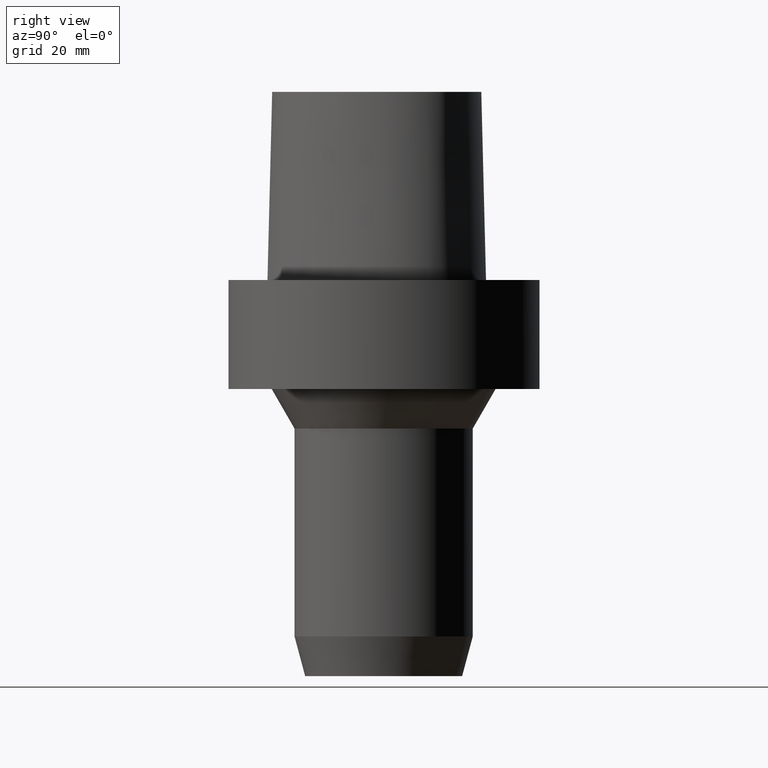
[diagram: clean part render]
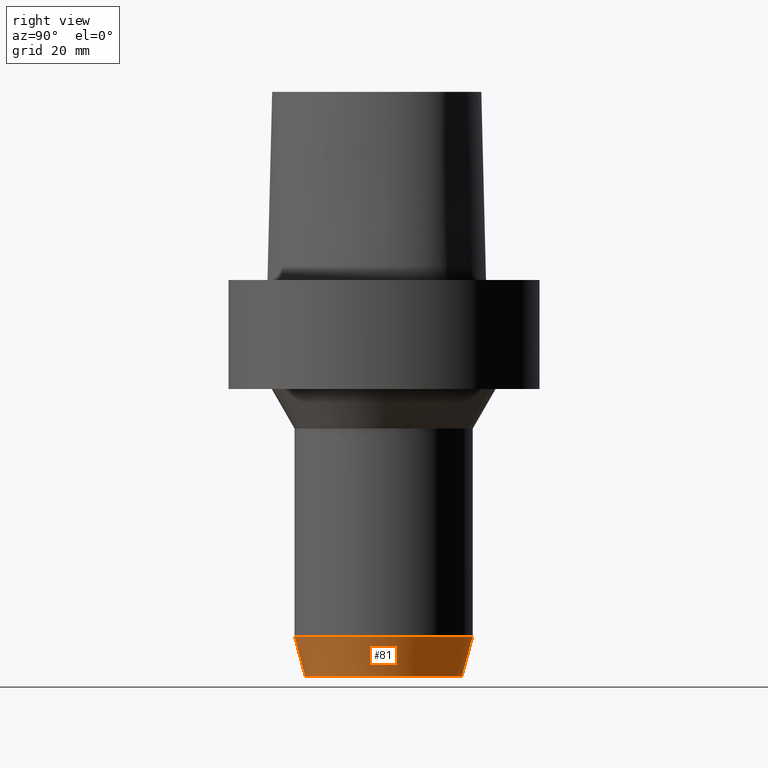
[diagram: same view with one face highlighted and labeled with its STEP entity id]
A machine part, right view. The second image highlights one B-rep face of the part: STEP entity #81.
In plain terms, the highlighted conical surface has half-angle 15 deg.
Its self-contained STEP definition (entity closure, byte-faithful):
#81=ADVANCED_FACE('',(#100,#101),#102,.T.);
#100=FACE_BOUND('',#266,.T.);
#101=FACE_BOUND('',#267,.T.);
#102=CONICAL_SURFACE('',#268,16.9282032322792,0.261799387022768);
#266=EDGE_LOOP('',(#311));
#267=EDGE_LOOP('',(#312));
#268=AXIS2_PLACEMENT_3D('',#313,#314,#315);
#311=ORIENTED_EDGE('',*,*,#346,.F.);
#312=ORIENTED_EDGE('',*,*,#345,.T.);
#313=CARTESIAN_POINT('',(4.65365783645719E-015,9.30731567291438E-015,-75.9999999950557));
#314=DIRECTION('',(-6.12323399573677E-017,-1.22464679914735E-016,1.0));
#315=DIRECTION('',(-1.23259516440783E-032,1.0,1.22464679914735E-016));
#345=EDGE_CURVE('',#365,#365,#366,.T.);
#346=EDGE_CURVE('',#367,#367,#368,.T.);
#365=VERTEX_POINT('',#456);
#366=CIRCLE('',#457,15.8564064645584);
#367=VERTEX_POINT('',#458);
#368=CIRCLE('',#459,18.0);
#456=CARTESIAN_POINT('',(4.89858719658941E-015,15.8564064645584,-80.0));
#457=AXIS2_PLACEMENT_3D('',#475,#476,#477);
#458=CARTESIAN_POINT('',(4.40872847632497E-015,18.0,-71.9999999901114));
#459=AXIS2_PLACEMENT_3D('',#478,#479,#480);
#475=CARTESIAN_POINT('',(4.89858719658941E-015,9.79717439317882E-015,-80.0));
#476=DIRECTION('',(-6.12323399573677E-017,-1.22464679914735E-016,1.0));
#477=DIRECTION('',(-1.23259516440783E-032,1.0,1.22464679914735E-016));
#478=CARTESIAN_POINT('',(4.40872847632497E-015,8.81745695264994E-015,-71.9999999901114));
#479=DIRECTION('',(-6.12323399573677E-017,-1.22464679914735E-016,1.0));
#480=DIRECTION('',(-1.23259516440783E-032,1.0,1.22464679914735E-016));